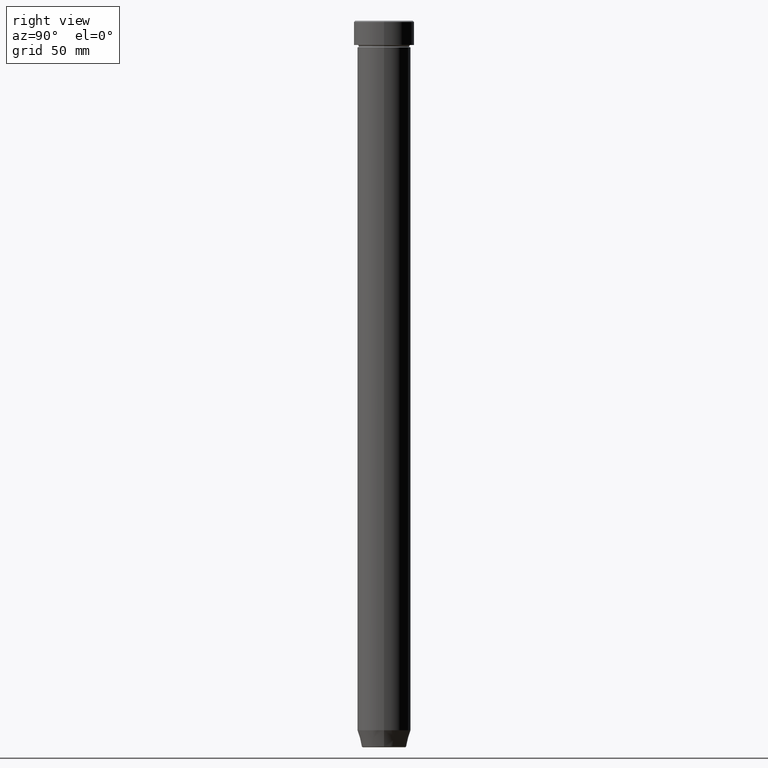
[diagram: clean part render]
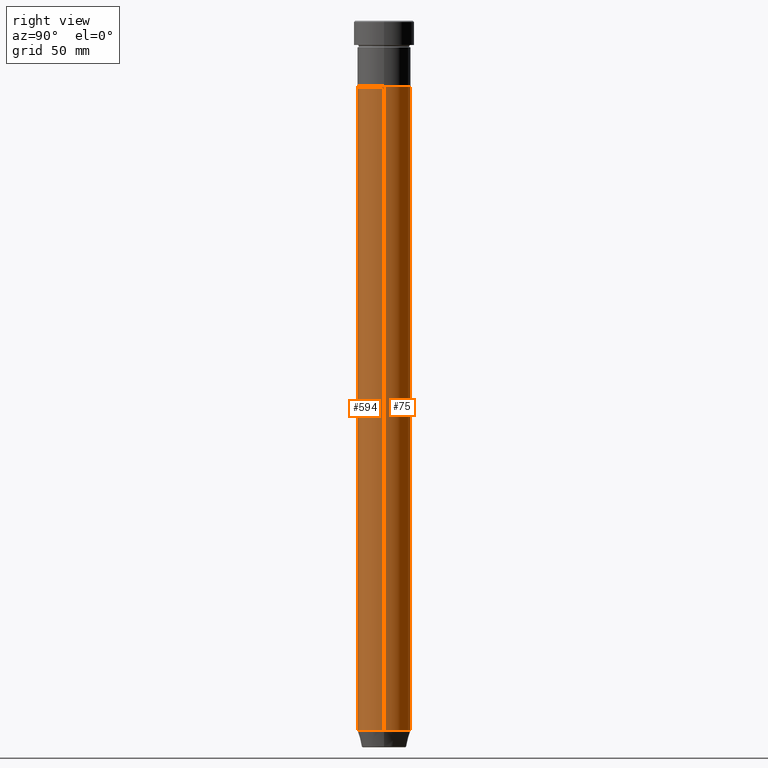
[diagram: same view with one multi-face feature highlighted, each face labeled with its STEP entity id]
A machine part, right view. The highlighted faces form ONE feature: a constant-radius fillet chain: 2 tangent blend faces with common blend radius 11 mm. The faces share edges in the B-rep.
Their STEP definitions:
[1] entity #594 (Cylinder):
#7 = AXIS2_PLACEMENT_3D ( 'NONE', #462, #44, #103 ) ;
#15 = EDGE_CURVE ( 'NONE', #28, #100, #488, .T. ) ;
#20 = VECTOR ( 'NONE', #300, 1000.000000000000000 ) ;
#24 = CIRCLE ( 'NONE', #84, 11.00000000000000000 ) ;
#28 = VERTEX_POINT ( 'NONE', #586 ) ;
#44 = DIRECTION ( 'NONE',  ( -0.000000000000000000, -0.000000000000000000, 1.000000000000000000 ) ) ;
#59 = CYLINDRICAL_SURFACE ( 'NONE', #7, 11.00000000000000000 ) ;
#73 = ORIENTED_EDGE ( 'NONE', *, *, #449, .T. ) ;
#84 = AXIS2_PLACEMENT_3D ( 'NONE', #94, #136, #261 ) ;
#94 = CARTESIAN_POINT ( 'NONE',  ( 0.000000000000000000, 0.000000000000000000, -293.0000000000000568 ) ) ;
#100 = VERTEX_POINT ( 'NONE', #592 ) ;
#103 = DIRECTION ( 'NONE',  ( 1.000000000000000000, 0.000000000000000000, 0.000000000000000000 ) ) ;
#120 = VERTEX_POINT ( 'NONE', #311 ) ;
#136 = DIRECTION ( 'NONE',  ( -0.000000000000000000, -0.000000000000000000, 1.000000000000000000 ) ) ;
#142 = CARTESIAN_POINT ( 'NONE',  ( 11.00000000000000000, 0.000000000000000000, -293.0000000000000568 ) ) ;
#162 = DIRECTION ( 'NONE',  ( 1.000000000000000000, 0.000000000000000000, 0.000000000000000000 ) ) ;
#172 = ORIENTED_EDGE ( 'NONE', *, *, #394, .F. ) ;
#203 = AXIS2_PLACEMENT_3D ( 'NONE', #209, #217, #162 ) ;
#209 = CARTESIAN_POINT ( 'NONE',  ( 0.000000000000000000, 0.000000000000000000, -27.00000000000000000 ) ) ;
#217 = DIRECTION ( 'NONE',  ( -0.000000000000000000, -0.000000000000000000, 1.000000000000000000 ) ) ;
#246 = EDGE_CURVE ( 'NONE', #120, #345, #24, .T. ) ;
#261 = DIRECTION ( 'NONE',  ( 1.000000000000000000, 0.000000000000000000, 0.000000000000000000 ) ) ;
#263 = DIRECTION ( 'NONE',  ( -0.000000000000000000, -0.000000000000000000, 1.000000000000000000 ) ) ;
#271 = LINE ( 'NONE', #451, #341 ) ;
#276 = ORIENTED_EDGE ( 'NONE', *, *, #246, .T. ) ;
#300 = DIRECTION ( 'NONE',  ( -0.000000000000000000, -0.000000000000000000, 1.000000000000000000 ) ) ;
#302 = EDGE_LOOP ( 'NONE', ( #172, #276, #73, #505 ) ) ;
#311 = CARTESIAN_POINT ( 'NONE',  ( -11.00000000000000000, 1.347111479062088405E-15, -293.0000000000000568 ) ) ;
#335 = LINE ( 'NONE', #396, #20 ) ;
#341 = VECTOR ( 'NONE', #263, 1000.000000000000000 ) ;
#345 = VERTEX_POINT ( 'NONE', #142 ) ;
#394 = EDGE_CURVE ( 'NONE', #120, #28, #335, .T. ) ;
#396 = CARTESIAN_POINT ( 'NONE',  ( -11.00000000000000000, 1.347111479062088405E-15, 0.000000000000000000 ) ) ;
#449 = EDGE_CURVE ( 'NONE', #345, #100, #271, .T. ) ;
#451 = CARTESIAN_POINT ( 'NONE',  ( 11.00000000000000000, 0.000000000000000000, 0.000000000000000000 ) ) ;
#462 = CARTESIAN_POINT ( 'NONE',  ( 0.000000000000000000, 0.000000000000000000, 0.000000000000000000 ) ) ;
#488 = CIRCLE ( 'NONE', #203, 11.00000000000000000 ) ;
#505 = ORIENTED_EDGE ( 'NONE', *, *, #15, .F. ) ;
#509 = FACE_OUTER_BOUND ( 'NONE', #302, .T. ) ;
#586 = CARTESIAN_POINT ( 'NONE',  ( -11.00000000000000000, 1.347111479062088405E-15, -27.00000000000000000 ) ) ;
#592 = CARTESIAN_POINT ( 'NONE',  ( 11.00000000000000000, 0.000000000000000000, -27.00000000000000000 ) ) ;
#594 = ADVANCED_FACE ( 'NONE', ( #509 ), #59, .T. ) ;
[2] entity #75 (Cylinder):
#20 = VECTOR ( 'NONE', #300, 1000.000000000000000 ) ;
#28 = VERTEX_POINT ( 'NONE', #586 ) ;
#45 = CARTESIAN_POINT ( 'NONE',  ( 0.000000000000000000, 0.000000000000000000, -27.00000000000000000 ) ) ;
#46 = DIRECTION ( 'NONE',  ( 1.000000000000000000, 0.000000000000000000, 0.000000000000000000 ) ) ;
#62 = CARTESIAN_POINT ( 'NONE',  ( 0.000000000000000000, 0.000000000000000000, 0.000000000000000000 ) ) ;
#69 = AXIS2_PLACEMENT_3D ( 'NONE', #45, #264, #410 ) ;
#75 = ADVANCED_FACE ( 'NONE', ( #423 ), #195, .T. ) ;
#100 = VERTEX_POINT ( 'NONE', #592 ) ;
#120 = VERTEX_POINT ( 'NONE', #311 ) ;
#127 = EDGE_CURVE ( 'NONE', #100, #28, #381, .T. ) ;
#137 = EDGE_CURVE ( 'NONE', #345, #120, #192, .T. ) ;
#142 = CARTESIAN_POINT ( 'NONE',  ( 11.00000000000000000, 0.000000000000000000, -293.0000000000000568 ) ) ;
#145 = DIRECTION ( 'NONE',  ( -0.000000000000000000, -0.000000000000000000, 1.000000000000000000 ) ) ;
#192 = CIRCLE ( 'NONE', #282, 11.00000000000000000 ) ;
#195 = CYLINDRICAL_SURFACE ( 'NONE', #332, 11.00000000000000000 ) ;
#250 = ORIENTED_EDGE ( 'NONE', *, *, #127, .F. ) ;
#254 = ORIENTED_EDGE ( 'NONE', *, *, #449, .F. ) ;
#263 = DIRECTION ( 'NONE',  ( -0.000000000000000000, -0.000000000000000000, 1.000000000000000000 ) ) ;
#264 = DIRECTION ( 'NONE',  ( -0.000000000000000000, -0.000000000000000000, 1.000000000000000000 ) ) ;
#271 = LINE ( 'NONE', #451, #341 ) ;
#282 = AXIS2_PLACEMENT_3D ( 'NONE', #458, #294, #543 ) ;
#294 = DIRECTION ( 'NONE',  ( -0.000000000000000000, -0.000000000000000000, 1.000000000000000000 ) ) ;
#300 = DIRECTION ( 'NONE',  ( -0.000000000000000000, -0.000000000000000000, 1.000000000000000000 ) ) ;
#311 = CARTESIAN_POINT ( 'NONE',  ( -11.00000000000000000, 1.347111479062088405E-15, -293.0000000000000568 ) ) ;
#324 = ORIENTED_EDGE ( 'NONE', *, *, #137, .T. ) ;
#332 = AXIS2_PLACEMENT_3D ( 'NONE', #62, #145, #46 ) ;
#335 = LINE ( 'NONE', #396, #20 ) ;
#341 = VECTOR ( 'NONE', #263, 1000.000000000000000 ) ;
#345 = VERTEX_POINT ( 'NONE', #142 ) ;
#381 = CIRCLE ( 'NONE', #69, 11.00000000000000000 ) ;
#394 = EDGE_CURVE ( 'NONE', #120, #28, #335, .T. ) ;
#396 = CARTESIAN_POINT ( 'NONE',  ( -11.00000000000000000, 1.347111479062088405E-15, 0.000000000000000000 ) ) ;
#410 = DIRECTION ( 'NONE',  ( 1.000000000000000000, 0.000000000000000000, 0.000000000000000000 ) ) ;
#423 = FACE_OUTER_BOUND ( 'NONE', #590, .T. ) ;
#449 = EDGE_CURVE ( 'NONE', #345, #100, #271, .T. ) ;
#451 = CARTESIAN_POINT ( 'NONE',  ( 11.00000000000000000, 0.000000000000000000, 0.000000000000000000 ) ) ;
#458 = CARTESIAN_POINT ( 'NONE',  ( 0.000000000000000000, 0.000000000000000000, -293.0000000000000568 ) ) ;
#543 = DIRECTION ( 'NONE',  ( 1.000000000000000000, 0.000000000000000000, 0.000000000000000000 ) ) ;
#549 = ORIENTED_EDGE ( 'NONE', *, *, #394, .T. ) ;
#586 = CARTESIAN_POINT ( 'NONE',  ( -11.00000000000000000, 1.347111479062088405E-15, -27.00000000000000000 ) ) ;
#590 = EDGE_LOOP ( 'NONE', ( #324, #549, #250, #254 ) ) ;
#592 = CARTESIAN_POINT ( 'NONE',  ( 11.00000000000000000, 0.000000000000000000, -27.00000000000000000 ) ) ;